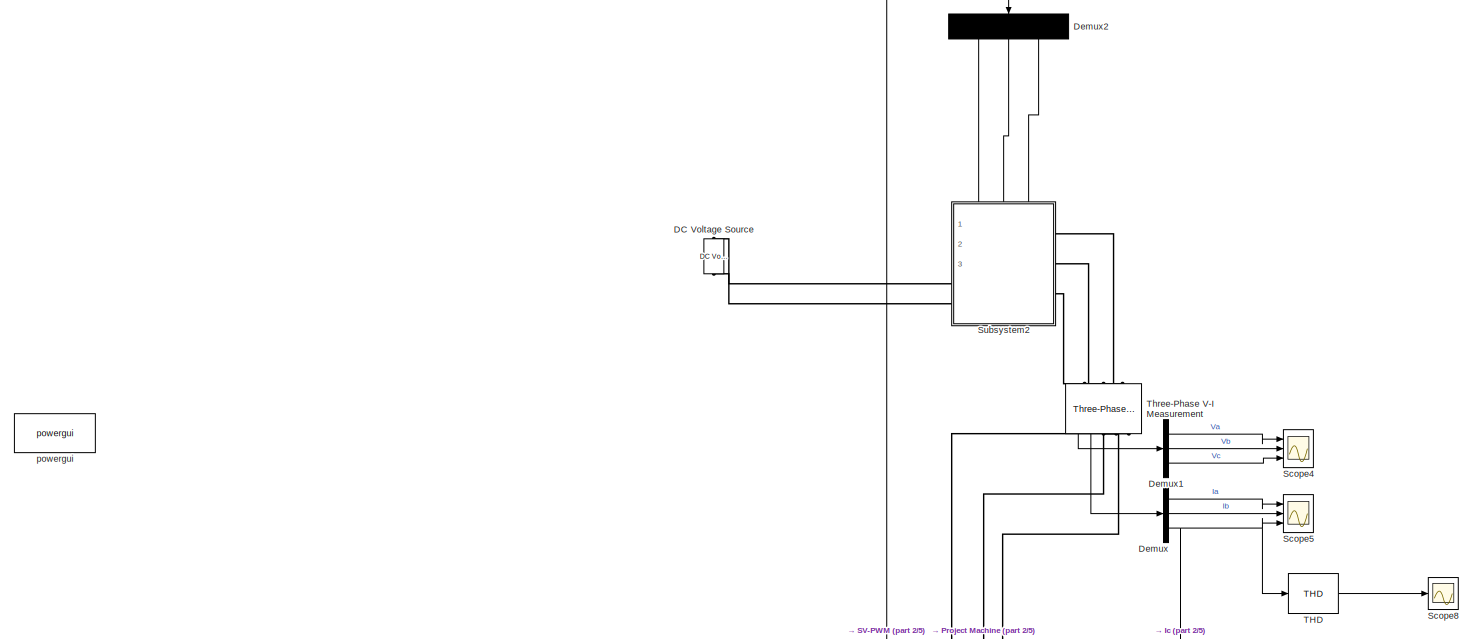
[diagram: root canvas - part 1/5, top center region]
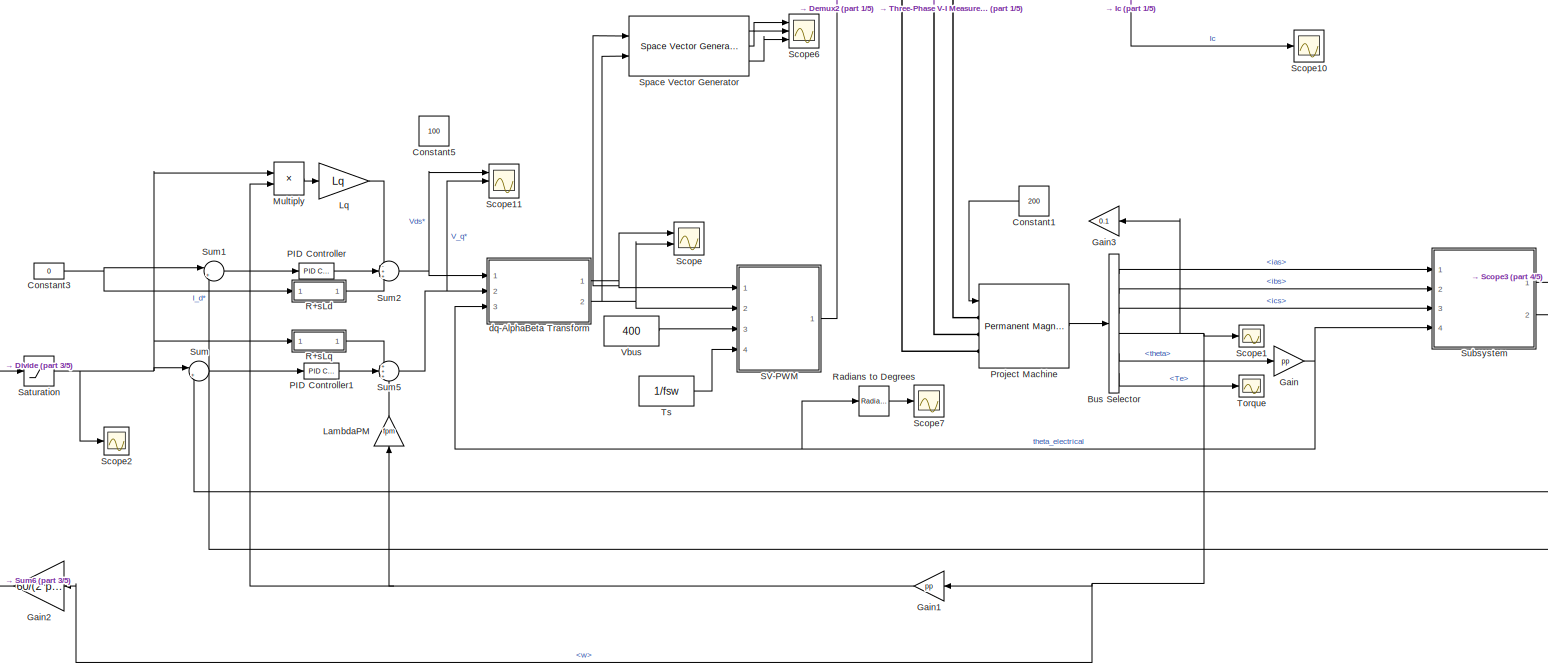
[diagram: root canvas - part 2/5, full width, middle band]
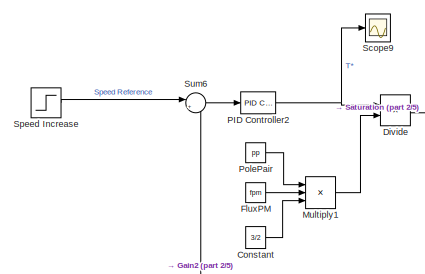
[diagram: root canvas - part 3/5, middle left region]
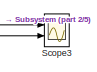
[diagram: root canvas - part 4/5, middle right region]
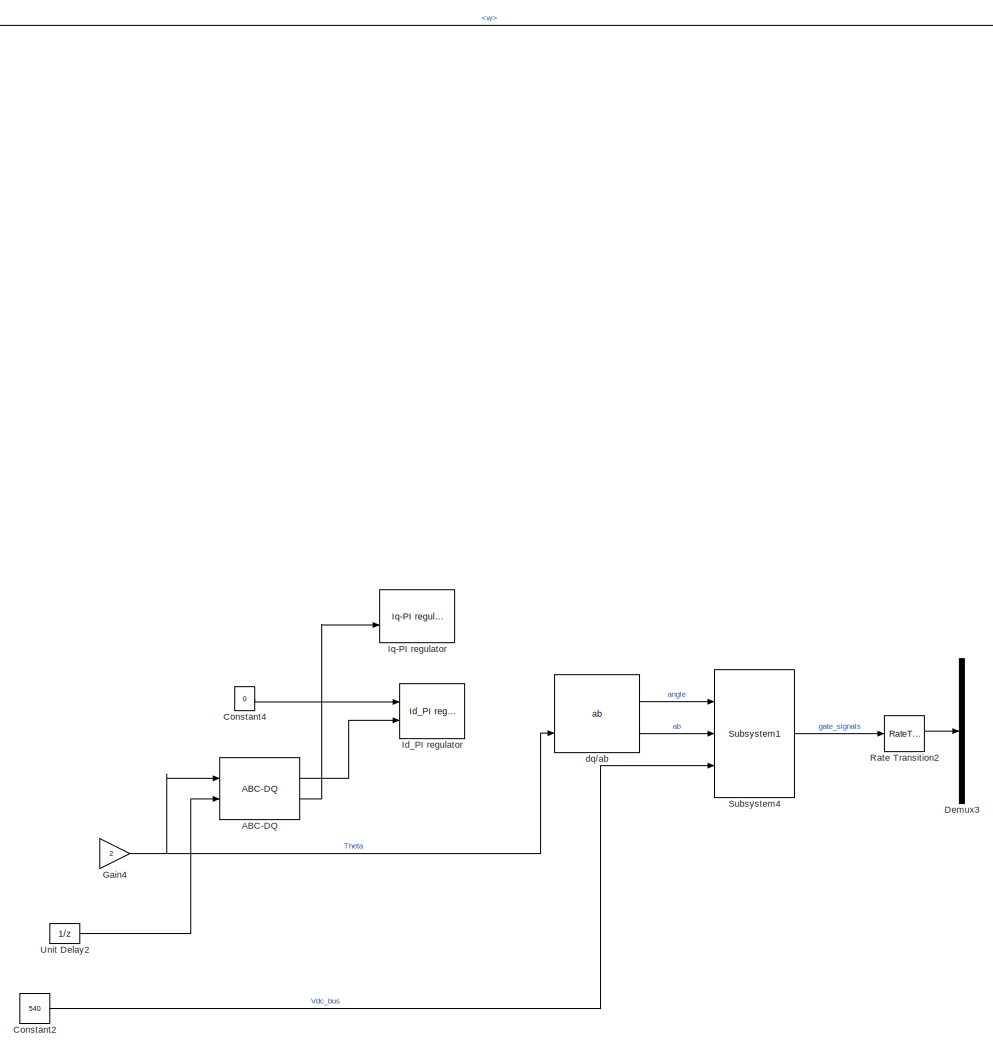
[diagram: root canvas - part 5/5, bottom center region]
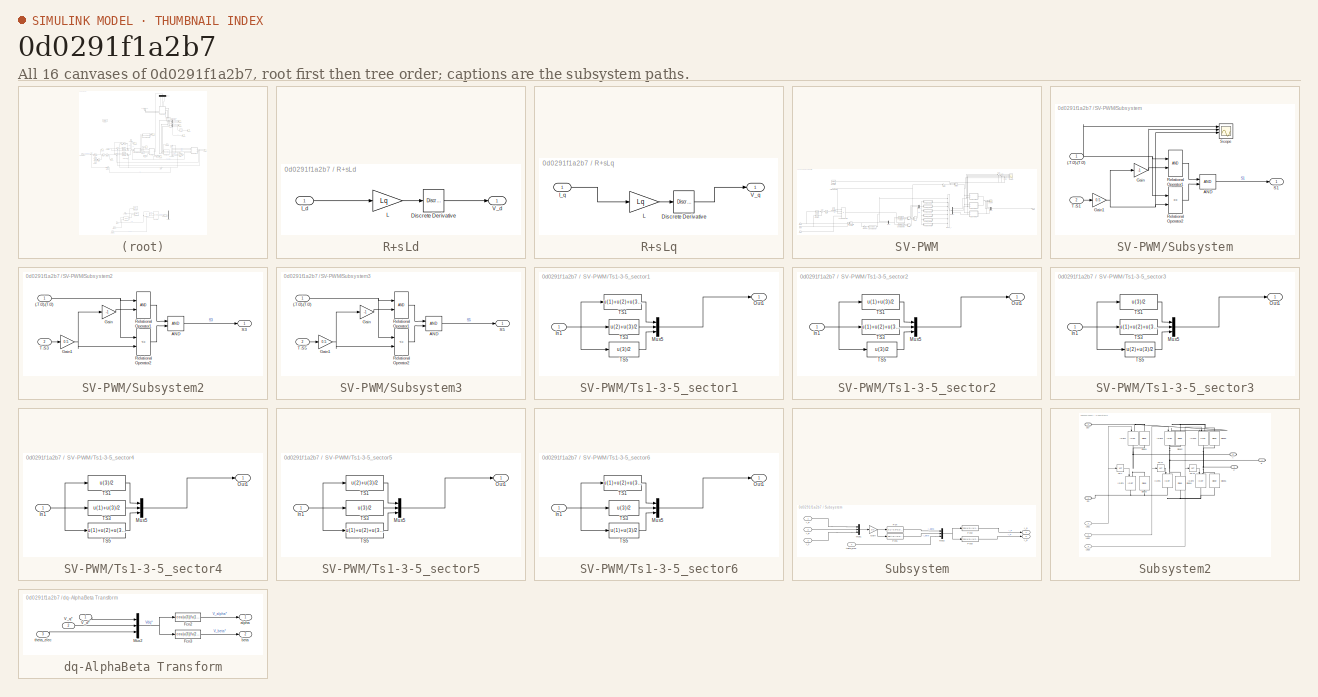
[diagram: thumbnail index - all 16 canvases of the model, root first then tree order]
MODEL slx_0d0291f1a2b7
KIND model
CONFIG AbsTol = auto
CONFIG EnableMultiTasking = off
CONFIG FixedStep = auto
CONFIG MaxStep = 5e-6
CONFIG MinStep = auto
CONFIG RelTol = 1e-3
CONFIG SampleTimeConstraint = Unconstrained
CONFIG SolverName = VariableStepAuto
CONFIG StartTime = 0.0
CONFIG StopTime = 1
BLOCK [Reference] ABC-DQ  REF=electricdrivelib/Fundamental Drive Blocks/Vector Controller
(PMSM)/Detailed
3 phase
SVM/ABC-DQ
  Commented = on
  NameLocation = top
  Ports = [2, 2]
  SourceBlock = electricdrivelib/Fundamental Drive Blocks/Vector Controller\n(PMSM)/Detailed\n3 phase\nSVM/ABC-DQ
  SourceProductBaseCode = PS
  SourceType = SubSystem
BLOCK [BusSelector] Bus Selector
  OutputSignals = ias,ibs,ics,w,theta,Te
  Ports = [1, 6]
BLOCK [Constant] Constant
  Value = 3/2
BLOCK [Constant] Constant1
  NameLocation = top
  Value = 200
BLOCK [Constant] Constant2
  Commented = on
  Value = 540
BLOCK [Constant] Constant3
  Value = 0
BLOCK [Constant] Constant4
  Commented = on
  Value = 0
BLOCK [Constant] Constant5
  Value = 100
BLOCK [Reference] DC Voltage Source  REF=spsDCVoltageSourceLib/DC Voltage Source
  Ports = [0, 0, 0, 0, 0, 1, 1]
  SourceBlock = spsDCVoltageSourceLib/DC Voltage Source
  SourceProductBaseCode = PS
  SourceType = DC Voltage Source
BLOCK [Demux] Demux
  Outputs = 3
  Ports = [1, 3]
BLOCK [Demux] Demux1
  Outputs = 3
  Ports = [1, 3]
BLOCK [Demux] Demux2
  NameLocation = left
  Outputs = 3
  Ports = [1, 3]
BLOCK [Demux] Demux3
  Commented = on
  Outputs = 6
  Ports = [1, 6]
BLOCK [Product] Divide
  Inputs = */
  Ports = [2, 1]
BLOCK [Constant] FluxPM
  Value = fpm
BLOCK [Gain] Gain
  Gain = pp
BLOCK [Gain] Gain1
  Gain = pp
  NameLocation = top
BLOCK [Gain] Gain2
  Gain = 60/(2*pi)
  NameLocation = top
BLOCK [Gain] Gain3
  Gain = 0.1
  NameLocation = top
BLOCK [Gain] Gain4
  Commented = on
  Gain = 2
  OutDataTypeStr = Inherit: Same as input
  ParamDataTypeStr = Inherit: Same as input
  SaturateOnIntegerOverflow = on
BLOCK [Reference] Id_PI regulator  REF=electricdrivelib/Fundamental Drive Blocks/Vector Controller
(PMSM)/Detailed
3 phase
SVM/Id_PI regulator
  Commented = on
  NameLocation = top
  Ports = [2, 1]
  SourceBlock = electricdrivelib/Fundamental Drive Blocks/Vector Controller\n(PMSM)/Detailed\n3 phase\nSVM/Id_PI regulator
  SourceProductBaseCode = PS
  SourceType = SubSystem
BLOCK [Reference] Iq-PI regulator  REF=electricdrivelib/Fundamental Drive Blocks/Vector Controller
(PMSM)/Detailed
3 phase
SVM/Iq-PI regulator
  Commented = on
  NameLocation = top
  Ports = [2, 1]
  SourceBlock = electricdrivelib/Fundamental Drive Blocks/Vector Controller\n(PMSM)/Detailed\n3 phase\nSVM/Iq-PI regulator
  SourceProductBaseCode = PS
  SourceType = SubSystem
BLOCK [Gain] LambdaPM
  Gain = fpm
  NameLocation = left
BLOCK [Gain] Lq
  Gain = Lq
BLOCK [Product] Multiply
  Ports = [2, 1]
BLOCK [Product] Multiply1
  Inputs = 3
  Ports = [3, 1]
BLOCK [Reference] PID Controller  REF=pid_lib/PID Controller
  Ports = [1, 1]
  SourceBlock = pid_lib/PID Controller
  SourceProductBaseCode = SL
  SourceType = PID 1dof
BLOCK [Reference] PID Controller1  REF=pid_lib/PID Controller
  Ports = [1, 1]
  SourceBlock = pid_lib/PID Controller
  SourceProductBaseCode = SL
  SourceType = PID 1dof
BLOCK [Reference] PID Controller2  REF=pid_lib/PID Controller
  Ports = [1, 1]
  SourceBlock = pid_lib/PID Controller
  SourceProductBaseCode = SL
  SourceType = PID 1dof
BLOCK [Constant] PolePair
  Value = pp
BLOCK [Reference] Project Machine  REF=spsPermanentMagnetSynchronousMachineLib/Permanent Magnet
Synchronous Machine
  Ports = [1, 1, 0, 0, 0, 3]
  SourceBlock = spsPermanentMagnetSynchronousMachineLib/Permanent Magnet\nSynchronous Machine
  SourceProductBaseCode = PS
  SourceType = Permanent Magnet Synchronous Machine
BLOCK [SubSystem] R+sLd
  Ports = [1, 1]
  RequestExecContextInheritance = off
BLOCK [Reference] R+sLd/Discrete Derivative  REF=simulink/Discrete/Discrete Derivative
  Ports = [1, 1]
  SourceBlock = simulink/Discrete/Discrete Derivative
  SourceProductBaseCode = SL
  SourceType = Discrete Derivative
BLOCK [Inport] R+sLd/I_d
BLOCK [Gain] R+sLd/L
  Gain = Lq
BLOCK [Outport] R+sLd/V_d
  VectorParamsAs1DForOutWhenUnconnected = off
BLOCK [SubSystem] R+sLq
  NameLocation = top
  Ports = [1, 1]
  RequestExecContextInheritance = off
BLOCK [Reference] R+sLq/Discrete Derivative  REF=simulink/Discrete/Discrete Derivative
  Ports = [1, 1]
  SourceBlock = simulink/Discrete/Discrete Derivative
  SourceProductBaseCode = SL
  SourceType = Discrete Derivative
BLOCK [Inport] R+sLq/I_q
BLOCK [Gain] R+sLq/L
  Gain = Lq
BLOCK [Outport] R+sLq/V_q
  VectorParamsAs1DForOutWhenUnconnected = off
BLOCK [Reference] Radians to Degrees  REF=simulink_extras/Transformations/Radians
to Degrees
  Ports = [1, 1]
  SourceBlock = simulink_extras/Transformations/Radians\nto Degrees
  SourceProductBaseCode = SL
  SourceType = RadiansToDegrees
BLOCK [RateTransition] Rate Transition2
  Commented = on
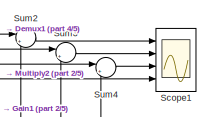
[diagram: SV-PWM - part 1/5, top right region]
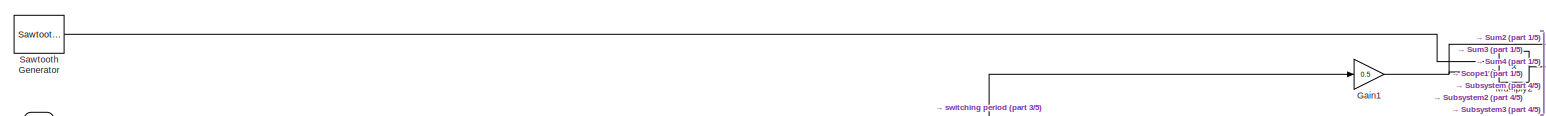
[diagram: SV-PWM - part 2/5, top center region]
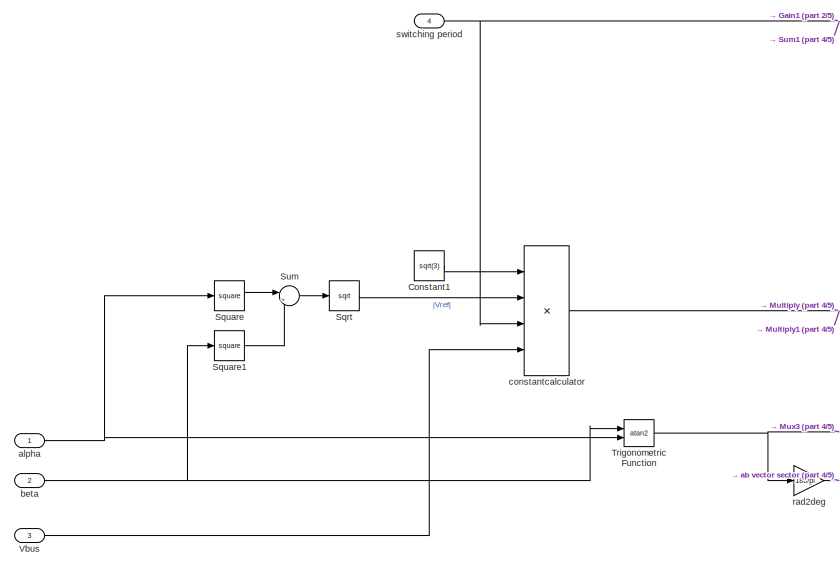
[diagram: SV-PWM - part 3/5, middle left region]
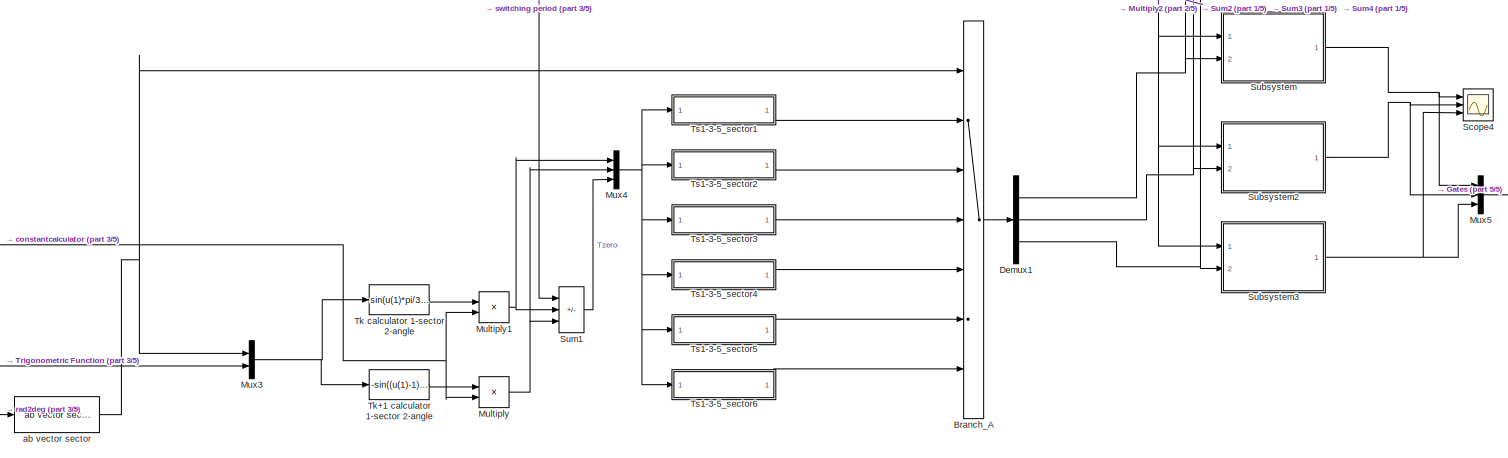
[diagram: SV-PWM - part 4/5, central region]
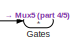
[diagram: SV-PWM - part 5/5, middle right region]
BLOCK [SubSystem] SV-PWM
  Ports = [4, 1]
  RequestExecContextInheritance = off
BLOCK [MultiPortSwitch] SV-PWM/Branch_A
  Inputs = 6
  Ports = [7, 1]
BLOCK [Constant] SV-PWM/Constant1
  Value = sqrt(3)
BLOCK [Demux] SV-PWM/Demux1
  Outputs = 3
  Ports = [1, 3]
BLOCK [Gain] SV-PWM/Gain1
  Gain = 0.5
BLOCK [Outport] SV-PWM/Gates
  VectorParamsAs1DForOutWhenUnconnected = off
BLOCK [Product] SV-PWM/Multiply
  Ports = [2, 1]
BLOCK [Product] SV-PWM/Multiply1
  Ports = [2, 1]
BLOCK [Product] SV-PWM/Multiply2
  Ports = [2, 1]
BLOCK [Mux] SV-PWM/Mux3
  DisplayOption = bar
  Inputs = 2
  Ports = [2, 1]
BLOCK [Mux] SV-PWM/Mux4
  DisplayOption = bar
  Inputs = 3
  Ports = [3, 1]
BLOCK [Mux] SV-PWM/Mux5
  DisplayOption = bar
  Inputs = 3
  Ports = [3, 1]
BLOCK [Reference] SV-PWM/Sawtooth Generator  REF=spsSawtoothGeneratorLib/Sawtooth
Generator
  Ports = [0, 1]
  SourceBlock = spsSawtoothGeneratorLib/Sawtooth\nGenerator
  SourceProductBaseCode = PS
  SourceType = Sawtooth Generator
BLOCK [Scope] SV-PWM/Scope1
  Floating = off
  NumInputPorts = 4
  Ports = [4]
  ScopeSpecificationString = Simulink.scopes.TimeScopeBlockCfg('CurrentConfiguration', extmgr.ConfigurationSet(extmgr.Configuration('Core','General UI',true,'FigureColor',[1 1 1]),extmgr.Configuration('Core','Source UI',true),extmgr.Configuration('Sources','WiredSimulink',true,'DataLoggingVariableName','ScopeData1'),extmgr.Configuration('Visuals','Time Domain',true,'SerializedDisplays',{struct('MinYLimReal','-0.0001','MaxYLim...<+1958ch>
BLOCK [Scope] SV-PWM/Scope4
  Floating = off
  NumInputPorts = 3
  Ports = [3]
  ScopeSpecificationString = Simulink.scopes.TimeScopeBlockCfg('CurrentConfiguration', extmgr.ConfigurationSet(extmgr.Configuration('Core','General UI',true),extmgr.Configuration('Core','Source UI',true),extmgr.Configuration('Sources','WiredSimulink',true,'DataLoggingVariableName','ScopeData2'),extmgr.Configuration('Visuals','Time Domain',true,'SerializedDisplays',{struct('MinYLimReal','-0.125','MaxYLimReal','1.125','YLabelRe...<+2780ch>
BLOCK [Sqrt] SV-PWM/Sqrt
BLOCK [Math] SV-PWM/Square
  Operator = square
  Ports = [1, 1]
  SignedPower = on
BLOCK [Math] SV-PWM/Square1
  Operator = square
  Ports = [1, 1]
  SignedPower = on
BLOCK [SubSystem] SV-PWM/Subsystem
  Ports = [2, 1]
  RequestExecContextInheritance = off
BLOCK [Inport] SV-PWM/Subsystem/(-T//2)-(T//2)
BLOCK [Logic] SV-PWM/Subsystem/AND
  AllPortsSameDT = off
  IconShape = distinctive
  OutDataTypeStr = boolean
  Ports = [2, 1]
BLOCK [Gain] SV-PWM/Subsystem/Gain
  Gain = -1
BLOCK [Gain] SV-PWM/Subsystem/Gain1
  Gain = 0.5
BLOCK [RelationalOperator] SV-PWM/Subsystem/Relational Operator1
  InputSameDT = off
  OutDataTypeStr = boolean
  Ports = [2, 1]
  RndMeth = Simplest
BLOCK [RelationalOperator] SV-PWM/Subsystem/Relational Operator2
  InputSameDT = off
  Operator = <=
  OutDataTypeStr = boolean
  Ports = [2, 1]
  RndMeth = Simplest
BLOCK [Outport] SV-PWM/Subsystem/S1
  VectorParamsAs1DForOutWhenUnconnected = off
BLOCK [Scope] SV-PWM/Subsystem/Scope
  Floating = off
  NumInputPorts = 4
  Ports = [4]
  ScopeSpecificationString = Simulink.scopes.TimeScopeBlockCfg('CurrentConfiguration', extmgr.ConfigurationSet(extmgr.Configuration('Core','General UI',true),extmgr.Configuration('Core','Source UI',true),extmgr.Configuration('Sources','WiredSimulink',true,'DataLoggingVariableName','ScopeData2'),extmgr.Configuration('Visuals','Time Domain',true,'SerializedDisplays',{struct('MinYLimReal','-0.00002','MaxYLimReal','0.0002','YLabe...<+1467ch>
BLOCK [Inport] SV-PWM/Subsystem/T-S1
  Port = 2
BLOCK [SubSystem] SV-PWM/Subsystem2
  Ports = [2, 1]
  RequestExecContextInheritance = off
BLOCK [Inport] SV-PWM/Subsystem2/(-T//2)-(T//2)
BLOCK [Logic] SV-PWM/Subsystem2/AND
  AllPortsSameDT = off
  IconShape = distinctive
  OutDataTypeStr = boolean
  Ports = [2, 1]
BLOCK [Gain] SV-PWM/Subsystem2/Gain
  Gain = -1
BLOCK [Gain] SV-PWM/Subsystem2/Gain1
  Gain = 0.5
BLOCK [RelationalOperator] SV-PWM/Subsystem2/Relational Operator1
  InputSameDT = off
  OutDataTypeStr = boolean
  Ports = [2, 1]
  RndMeth = Simplest
BLOCK [RelationalOperator] SV-PWM/Subsystem2/Relational Operator2
  InputSameDT = off
  Operator = <=
  OutDataTypeStr = boolean
  Ports = [2, 1]
  RndMeth = Simplest
BLOCK [Outport] SV-PWM/Subsystem2/S3
  VectorParamsAs1DForOutWhenUnconnected = off
BLOCK [Inport] SV-PWM/Subsystem2/T-S3
  Port = 2
BLOCK [SubSystem] SV-PWM/Subsystem3
  Ports = [2, 1]
  RequestExecContextInheritance = off
BLOCK [Inport] SV-PWM/Subsystem3/(-T//2)-(T//2)
BLOCK [Logic] SV-PWM/Subsystem3/AND
  AllPortsSameDT = off
  IconShape = distinctive
  OutDataTypeStr = boolean
  Ports = [2, 1]
BLOCK [Gain] SV-PWM/Subsystem3/Gain
  Gain = -1
BLOCK [Gain] SV-PWM/Subsystem3/Gain1
  Gain = 0.5
BLOCK [RelationalOperator] SV-PWM/Subsystem3/Relational Operator1
  InputSameDT = off
  OutDataTypeStr = boolean
  Ports = [2, 1]
  RndMeth = Simplest
BLOCK [RelationalOperator] SV-PWM/Subsystem3/Relational Operator2
  InputSameDT = off
  Operator = <=
  OutDataTypeStr = boolean
  Ports = [2, 1]
  RndMeth = Simplest
BLOCK [Outport] SV-PWM/Subsystem3/S5
  VectorParamsAs1DForOutWhenUnconnected = off
BLOCK [Inport] SV-PWM/Subsystem3/T-S5
  Port = 2
BLOCK [Sum] SV-PWM/Sum
  Inputs = |++
  Ports = [2, 1]
BLOCK [Sum] SV-PWM/Sum1
  IconShape = rectangular
  Inputs = +--
  Ports = [3, 1]
BLOCK [Sum] SV-PWM/Sum2
  Inputs = |+-
  Ports = [2, 1]
BLOCK [Sum] SV-PWM/Sum3
  Inputs = |+-
  Ports = [2, 1]
BLOCK [Sum] SV-PWM/Sum4
  Inputs = |+-
  Ports = [2, 1]
BLOCK [Fcn] SV-PWM/Tk calculator 1-sector 2-angle
  Expr = sin(u(1)*pi/3)*cos(u(2))-cos(u(1)*pi/3)*sin(u(2))
BLOCK [Fcn] SV-PWM/Tk+1 calculator 1-sector 2-angle
  Expr = -sin((u(1)-1)*pi/3)*cos(u(2))+cos((u(1)-1)*pi/3)*sin(u(2))
BLOCK [Trigonometry] SV-PWM/Trigonometric Function
  Operator = atan2
  Ports = [2, 1]
BLOCK [SubSystem] SV-PWM/Ts1-3-5_sector1
  Ports = [1, 1]
  RequestExecContextInheritance = off
BLOCK [Inport] SV-PWM/Ts1-3-5_sector1/In1
BLOCK [Mux] SV-PWM/Ts1-3-5_sector1/Mux5
  DisplayOption = bar
  Inputs = 3
  Ports = [3, 1]
BLOCK [Outport] SV-PWM/Ts1-3-5_sector1/Out1
  VectorParamsAs1DForOutWhenUnconnected = off
BLOCK [Fcn] SV-PWM/Ts1-3-5_sector1/TS1
  Expr = u(1)+u(2)+u(3)/2
BLOCK [Fcn] SV-PWM/Ts1-3-5_sector1/TS3
  Expr = u(2)+u(3)/2
BLOCK [Fcn] SV-PWM/Ts1-3-5_sector1/TS5
  Expr = u(3)/2
BLOCK [SubSystem] SV-PWM/Ts1-3-5_sector2
  Ports = [1, 1]
  RequestExecContextInheritance = off
BLOCK [Inport] SV-PWM/Ts1-3-5_sector2/In1
BLOCK [Mux] SV-PWM/Ts1-3-5_sector2/Mux5
  DisplayOption = bar
  Inputs = 3
  Ports = [3, 1]
BLOCK [Outport] SV-PWM/Ts1-3-5_sector2/Out1
  VectorParamsAs1DForOutWhenUnconnected = off
BLOCK [Fcn] SV-PWM/Ts1-3-5_sector2/TS1
  Expr = u(1)+u(3)/2
BLOCK [Fcn] SV-PWM/Ts1-3-5_sector2/TS3
  Expr = u(1)+u(2)+u(3)/2
BLOCK [Fcn] SV-PWM/Ts1-3-5_sector2/TS5
  Expr = u(3)/2
BLOCK [SubSystem] SV-PWM/Ts1-3-5_sector3
  Ports = [1, 1]
  RequestExecContextInheritance = off
BLOCK [Inport] SV-PWM/Ts1-3-5_sector3/In1
BLOCK [Mux] SV-PWM/Ts1-3-5_sector3/Mux5
  DisplayOption = bar
  Inputs = 3
  Ports = [3, 1]
BLOCK [Outport] SV-PWM/Ts1-3-5_sector3/Out1
  VectorParamsAs1DForOutWhenUnconnected = off
BLOCK [Fcn] SV-PWM/Ts1-3-5_sector3/TS1
  Expr = u(3)/2
BLOCK [Fcn] SV-PWM/Ts1-3-5_sector3/TS3
  Expr = u(1)+u(2)+u(3)/2
BLOCK [Fcn] SV-PWM/Ts1-3-5_sector3/TS5
  Expr = u(2)+u(3)/2
BLOCK [SubSystem] SV-PWM/Ts1-3-5_sector4
  Ports = [1, 1]
  RequestExecContextInheritance = off
BLOCK [Inport] SV-PWM/Ts1-3-5_sector4/In1
BLOCK [Mux] SV-PWM/Ts1-3-5_sector4/Mux5
  DisplayOption = bar
  Inputs = 3
  Ports = [3, 1]
BLOCK [Outport] SV-PWM/Ts1-3-5_sector4/Out1
  VectorParamsAs1DForOutWhenUnconnected = off
BLOCK [Fcn] SV-PWM/Ts1-3-5_sector4/TS1
  Expr = u(3)/2
BLOCK [Fcn] SV-PWM/Ts1-3-5_sector4/TS3
  Expr = u(1)+u(3)/2
BLOCK [Fcn] SV-PWM/Ts1-3-5_sector4/TS5
  Expr = u(1)+u(2)+u(3)/2
BLOCK [SubSystem] SV-PWM/Ts1-3-5_sector5
  Ports = [1, 1]
  RequestExecContextInheritance = off
BLOCK [Inport] SV-PWM/Ts1-3-5_sector5/In1
BLOCK [Mux] SV-PWM/Ts1-3-5_sector5/Mux5
  DisplayOption = bar
  Inputs = 3
  Ports = [3, 1]
BLOCK [Outport] SV-PWM/Ts1-3-5_sector5/Out1
  VectorParamsAs1DForOutWhenUnconnected = off
BLOCK [Fcn] SV-PWM/Ts1-3-5_sector5/TS1
  Expr = u(2)+u(3)/2
BLOCK [Fcn] SV-PWM/Ts1-3-5_sector5/TS3
  Expr = u(3)/2
BLOCK [Fcn] SV-PWM/Ts1-3-5_sector5/TS5
  Expr = u(1)+u(2)+u(3)/2
BLOCK [SubSystem] SV-PWM/Ts1-3-5_sector6
  Ports = [1, 1]
  RequestExecContextInheritance = off
BLOCK [Inport] SV-PWM/Ts1-3-5_sector6/In1
BLOCK [Mux] SV-PWM/Ts1-3-5_sector6/Mux5
  DisplayOption = bar
  Inputs = 3
  Ports = [3, 1]
BLOCK [Outport] SV-PWM/Ts1-3-5_sector6/Out1
  VectorParamsAs1DForOutWhenUnconnected = off
BLOCK [Fcn] SV-PWM/Ts1-3-5_sector6/TS1
  Expr = u(1)+u(2)+u(3)/2
BLOCK [Fcn] SV-PWM/Ts1-3-5_sector6/TS3
  Expr = u(3)/2
BLOCK [Fcn] SV-PWM/Ts1-3-5_sector6/TS5
  Expr = u(1)+u(3)/2
BLOCK [Inport] SV-PWM/Vbus
  Port = 3
BLOCK [Reference] SV-PWM/ab vector sector  REF=spsSpaceVectorModulatorLib/Space Vector Modulator/Detailed/ab vector sector
  Ports = [1, 1]
  SourceBlock = spsSpaceVectorModulatorLib/Space Vector Modulator/Detailed/ab vector sector
  SourceProductBaseCode = PS
  SourceType = SubSystem
BLOCK [Inport] SV-PWM/alpha
BLOCK [Inport] SV-PWM/beta
  Port = 2
BLOCK [Product] SV-PWM/constantcalculator
  Inputs = ***/
  Ports = [4, 1]
BLOCK [Gain] SV-PWM/rad2deg
  Gain = 180/pi
  OutDataTypeStr = Inherit: Same as input
  ParamDataTypeStr = Inherit: Same as input
  SaturateOnIntegerOverflow = on
BLOCK [Inport] SV-PWM/switching period
  Port = 4
BLOCK [Saturate] Saturation
  LowerLimit = -iqmax
  UpperLimit = iqmax
BLOCK [Scope] Scope
  Floating = off
  NumInputPorts = 2
  Ports = [2]
  ScopeSpecificationString = Simulink.scopes.TimeScopeBlockCfg('CurrentConfiguration', extmgr.ConfigurationSet(extmgr.Configuration('Core','General UI',true),extmgr.Configuration('Core','Source UI',true),extmgr.Configuration('Sources','WiredSimulink',true,'DataLoggingVariableName','ScopeData1'),extmgr.Configuration('Visuals','Time Domain',true,'SerializedDisplays',{struct('MinYLimReal','-567.39692','MaxYLimReal','383.9875','Y...<+1506ch>
BLOCK [Scope] Scope1
  Floating = off
  NumInputPorts = 1
  Ports = [1]
  ScopeSpecificationString = Simulink.scopes.TimeScopeBlockCfg('CurrentConfiguration', extmgr.ConfigurationSet(extmgr.Configuration('Core','General UI',true,'FigureColor',[1 1 1]),extmgr.Configuration('Core','Source UI',true),extmgr.Configuration('Sources','WiredSimulink',true),extmgr.Configuration('Visuals','Time Domain',true,'SerializedDisplays',{struct('MinYLimReal','596.45905','MaxYLimReal','631.84911','YLabelReal','','Mi...<+1530ch>
BLOCK [Scope] Scope10
  Floating = off
  NumInputPorts = 1
  Ports = [1]
  ScopeSpecificationString = Simulink.scopes.TimeScopeBlockCfg('CurrentConfiguration', extmgr.ConfigurationSet(extmgr.Configuration('Core','General UI',true),extmgr.Configuration('Core','Source UI',true),extmgr.Configuration('Sources','WiredSimulink',true,'DataLoggingVariableName','ic_sv','DataLogging',true),extmgr.Configuration('Visuals','Time Domain',true,'SerializedDisplays',{struct('MinYLimReal','-1869.16554','MaxYLimReal...<+1451ch>
BLOCK [Scope] Scope11
  Floating = off
  NumInputPorts = 3
  Ports = [3]
  ScopeSpecificationString = Simulink.scopes.TimeScopeBlockCfg('CurrentConfiguration', extmgr.ConfigurationSet(extmgr.Configuration('Core','General UI',true),extmgr.Configuration('Core','Source UI',true),extmgr.Configuration('Sources','WiredSimulink',true,'DataLoggingVariableName','ScopeData2'),extmgr.Configuration('Visuals','Time Domain',true,'SerializedDisplays',{struct('MinYLimReal','-302.69281','MaxYLimReal','1364.52142',...<+1444ch>
BLOCK [Scope] Scope2
  Floating = off
  NumInputPorts = 1
  Ports = [1]
  ScopeSpecificationString = Simulink.scopes.TimeScopeBlockCfg('CurrentConfiguration', extmgr.ConfigurationSet(extmgr.Configuration('Core','General UI',true,'FigureColor',[1 1 1]),extmgr.Configuration('Core','Source UI',true),extmgr.Configuration('Sources','WiredSimulink',true,'DataLoggingVariableName','ScopeData1'),extmgr.Configuration('Visuals','Time Domain',true,'SerializedDisplays',{struct('MinYLimReal','1132.90398','MaxY...<+1592ch>
BLOCK [Scope] Scope3
  Floating = off
  NumInputPorts = 2
  Ports = [2]
  ScopeSpecificationString = Simulink.scopes.TimeScopeBlockCfg('CurrentConfiguration', extmgr.ConfigurationSet(extmgr.Configuration('Core','General UI',true,'FigureColor',[1 1 1]),extmgr.Configuration('Core','Source UI',true),extmgr.Configuration('Sources','WiredSimulink',true,'DataLoggingVariableName','ScopeData5'),extmgr.Configuration('Visuals','Time Domain',true,'SerializedDisplays',{struct('MinYLimReal','-372.57114','MaxY...<+1733ch>
BLOCK [Scope] Scope4
  Floating = off
  NumInputPorts = 3
  Ports = [3]
  ScopeSpecificationString = Simulink.scopes.TimeScopeBlockCfg('CurrentConfiguration', extmgr.ConfigurationSet(extmgr.Configuration('Core','General UI',true,'FigureColor',[1 1 1]),extmgr.Configuration('Core','Source UI',true),extmgr.Configuration('Sources','WiredSimulink',true,'DataLoggingVariableName','ScopeData3'),extmgr.Configuration('Visuals','Time Domain',true,'SerializedDisplays',{struct('MinYLimReal','-735.45005','MaxY...<+3282ch>
BLOCK [Scope] Scope5
  Floating = off
  NumInputPorts = 3
  Ports = [3]
  ScopeSpecificationString = Simulink.scopes.TimeScopeBlockCfg('CurrentConfiguration', extmgr.ConfigurationSet(extmgr.Configuration('Core','General UI',true,'FigureColor',[1 1 1]),extmgr.Configuration('Core','Source UI',true),extmgr.Configuration('Sources','WiredSimulink',true,'DataLoggingVariableName','ScopeData4'),extmgr.Configuration('Visuals','Time Domain',true,'SerializedDisplays',{struct('MinYLimReal','-1156.52675','Max...<+3286ch>
BLOCK [Scope] Scope6
  Floating = off
  NumInputPorts = 3
  Ports = [3]
  ScopeSpecificationString = Simulink.scopes.TimeScopeBlockCfg('CurrentConfiguration', extmgr.ConfigurationSet(extmgr.Configuration('Core','General UI',true),extmgr.Configuration('Core','Source UI',true),extmgr.Configuration('Sources','WiredSimulink',true,'DataLoggingVariableName','ScopeData1'),extmgr.Configuration('Visuals','Time Domain',true,'SerializedDisplays',{struct('MinYLimReal','-199.82458','MaxYLimReal','124.02078','...<+1528ch>
BLOCK [Scope] Scope7
  Floating = off
  NumInputPorts = 1
  Ports = [1]
  ScopeSpecificationString = Simulink.scopes.TimeScopeBlockCfg('CurrentConfiguration', extmgr.ConfigurationSet(extmgr.Configuration('Core','General UI',true),extmgr.Configuration('Core','Source UI',true),extmgr.Configuration('Sources','WiredSimulink',true,'DataLoggingVariableName','ScopeData2'),extmgr.Configuration('Visuals','Time Domain',true,'SerializedDisplays',{struct('MinYLimReal','-507.31229','MaxYLimReal','4565.81065',...<+1420ch>
BLOCK [Scope] Scope8
  Floating = off
  NumInputPorts = 1
  Ports = [1]
  ScopeSpecificationString = Simulink.scopes.TimeScopeBlockCfg('CurrentConfiguration', extmgr.ConfigurationSet(extmgr.Configuration('Core','General UI',true),extmgr.Configuration('Core','Source UI',true),extmgr.Configuration('Sources','WiredSimulink',true,'DataLoggingVariableName','ScopeData1'),extmgr.Configuration('Visuals','Time Domain',true,'SerializedDisplays',{struct('MinYLimReal','0.00125','MaxYLimReal','0.01171','YLabe...<+1433ch>
BLOCK [Scope] Scope9
  Floating = off
  NumInputPorts = 1
  Ports = [1]
  ScopeSpecificationString = Simulink.scopes.TimeScopeBlockCfg('CurrentConfiguration', extmgr.ConfigurationSet(extmgr.Configuration('Core','General UI',true,'FigureColor',[1 1 1]),extmgr.Configuration('Core','Source UI',true),extmgr.Configuration('Sources','WiredSimulink',true,'DataLoggingVariableName','ScopeData2'),extmgr.Configuration('Visuals','Time Domain',true,'SerializedDisplays',{struct('MinYLimReal','5427259.76337','M...<+1608ch>
BLOCK [Reference] Space Vector Generator  REF=mcbcontrolslib/Space Vector Generator
  Ports = [2, 3]
  SourceBlock = mcbcontrolslib/Space Vector Generator
  SourceProductBaseCode = MT
  SourceType = Space Vector Generator
BLOCK [Step] Speed Increase
  After = 6000
  Before = 6000
  SampleTime = 0
  Time = 0.5
BLOCK [SubSystem] Subsystem
  Ports = [4, 2]
  RequestExecContextInheritance = off
BLOCK [Fcn] Subsystem/Fcn
  Expr = u(1)-0.5*u(2)-0.5*u(3)
BLOCK [Fcn] Subsystem/Fcn1
  Expr = sqrt(3)*(u(2)-u(3))/2
BLOCK [Fcn] Subsystem/Fcn2
  Expr = cos(u(3))*u(1)+sin(u(3))*u(2)
BLOCK [Fcn] Subsystem/Fcn3
  Expr = cos(u(3))*u(2)-sin(u(3))*u(1)
BLOCK [Gain] Subsystem/Gain
  Gain = 2/3
BLOCK [Inport] Subsystem/I_a
BLOCK [Inport] Subsystem/I_b
  Port = 2
BLOCK [Inport] Subsystem/I_c
  Port = 3
BLOCK [Outport] Subsystem/I_d
  VectorParamsAs1DForOutWhenUnconnected = off
BLOCK [Outport] Subsystem/I_q
  Port = 2
  VectorParamsAs1DForOutWhenUnconnected = off
BLOCK [Mux] Subsystem/Mux1
  DisplayOption = bar
  Inputs = 3
  Ports = [3, 1]
BLOCK [Mux] Subsystem/Mux2
  DisplayOption = bar
  Inputs = 3
  Ports = [3, 1]
BLOCK [Inport] Subsystem/theta_elec
  Port = 4
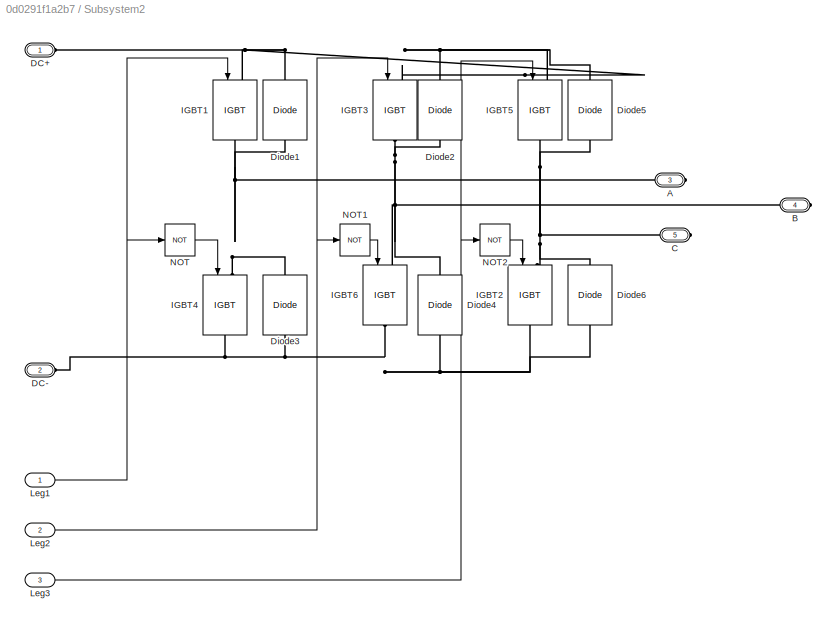
BLOCK [SubSystem] Subsystem2
  PortSchema = {"entries":[{"content":{"sides":[{"content":{"connectorIds":["LConn1","LConn2"]},"type":"ConnectorPlacement.EquallySpacedRectSide","uuid":"88d7e8af-40ab-4bee-bce0-34dcfd3f569e"},{"content":{"connectorIds":["RConn1","RConn2","RConn3"],"side":"RIGHT"},"type":"ConnectorPlacement.EquallySpacedRectSide","uuid":"521f4639-389b-4d4b-889c-c4a922300d9a"},{"content":{"connectorIds":["In1","In2","In3"],"side"...<+289ch>
  Ports = [3, 0, 0, 0, 0, 2, 3]
  RequestExecContextInheritance = off
BLOCK [PMIOPort] Subsystem2/A
  Port = 3
  Side = Right
BLOCK [PMIOPort] Subsystem2/B
  Port = 4
  Side = Right
BLOCK [PMIOPort] Subsystem2/C
  Port = 5
  Side = Right
BLOCK [PMIOPort] Subsystem2/DC+
  Side = Left
BLOCK [PMIOPort] Subsystem2/DC-
  Port = 2
  Side = Left
BLOCK [Reference] Subsystem2/Diode1  REF=spsDiodeLib/Diode
  NameLocation = right
  Ports = [0, 0, 0, 0, 0, 1, 1]
  SourceBlock = spsDiodeLib/Diode
  SourceProductBaseCode = PS
  SourceType = Diode
BLOCK [Reference] Subsystem2/Diode2  REF=spsDiodeLib/Diode
  NameLocation = right
  Ports = [0, 0, 0, 0, 0, 1, 1]
  SourceBlock = spsDiodeLib/Diode
  SourceProductBaseCode = PS
  SourceType = Diode
BLOCK [Reference] Subsystem2/Diode3  REF=spsDiodeLib/Diode
  NameLocation = right
  Ports = [0, 0, 0, 0, 0, 1, 1]
  SourceBlock = spsDiodeLib/Diode
  SourceProductBaseCode = PS
  SourceType = Diode
BLOCK [Reference] Subsystem2/Diode4  REF=spsDiodeLib/Diode
  NameLocation = right
  Ports = [0, 0, 0, 0, 0, 1, 1]
  SourceBlock = spsDiodeLib/Diode
  SourceProductBaseCode = PS
  SourceType = Diode
BLOCK [Reference] Subsystem2/Diode5  REF=spsDiodeLib/Diode
  NameLocation = right
  Ports = [0, 0, 0, 0, 0, 1, 1]
  SourceBlock = spsDiodeLib/Diode
  SourceProductBaseCode = PS
  SourceType = Diode
BLOCK [Reference] Subsystem2/Diode6  REF=spsDiodeLib/Diode
  NameLocation = right
  Ports = [0, 0, 0, 0, 0, 1, 1]
  SourceBlock = spsDiodeLib/Diode
  SourceProductBaseCode = PS
  SourceType = Diode
BLOCK [Reference] Subsystem2/IGBT1  REF=spsIGBTLib/IGBT
  NameLocation = left
  Ports = [1, 0, 0, 0, 0, 1, 1]
  SourceBlock = spsIGBTLib/IGBT
  SourceProductBaseCode = PS
  SourceType = IGBT
BLOCK [Reference] Subsystem2/IGBT2  REF=spsIGBTLib/IGBT
  NameLocation = left
  Ports = [1, 0, 0, 0, 0, 1, 1]
  SourceBlock = spsIGBTLib/IGBT
  SourceProductBaseCode = PS
  SourceType = IGBT
BLOCK [Reference] Subsystem2/IGBT3  REF=spsIGBTLib/IGBT
  NameLocation = left
  Ports = [1, 0, 0, 0, 0, 1, 1]
  SourceBlock = spsIGBTLib/IGBT
  SourceProductBaseCode = PS
  SourceType = IGBT
BLOCK [Reference] Subsystem2/IGBT4  REF=spsIGBTLib/IGBT
  NameLocation = left
  Ports = [1, 0, 0, 0, 0, 1, 1]
  SourceBlock = spsIGBTLib/IGBT
  SourceProductBaseCode = PS
  SourceType = IGBT
BLOCK [Reference] Subsystem2/IGBT5  REF=spsIGBTLib/IGBT
  NameLocation = left
  Ports = [1, 0, 0, 0, 0, 1, 1]
  SourceBlock = spsIGBTLib/IGBT
  SourceProductBaseCode = PS
  SourceType = IGBT
BLOCK [Reference] Subsystem2/IGBT6  REF=spsIGBTLib/IGBT
  NameLocation = left
  Ports = [1, 0, 0, 0, 0, 1, 1]
  SourceBlock = spsIGBTLib/IGBT
  SourceProductBaseCode = PS
  SourceType = IGBT
BLOCK [Inport] Subsystem2/Leg1
BLOCK [Inport] Subsystem2/Leg2
  Port = 2
BLOCK [Inport] Subsystem2/Leg3
  Port = 3
BLOCK [Logic] Subsystem2/NOT
  AllPortsSameDT = off
  IconShape = distinctive
  Operator = NOT
  OutDataTypeStr = boolean
  Ports = [1, 1]
BLOCK [Logic] Subsystem2/NOT1
  AllPortsSameDT = off
  IconShape = distinctive
  Operator = NOT
  OutDataTypeStr = boolean
  Ports = [1, 1]
BLOCK [Logic] Subsystem2/NOT2
  AllPortsSameDT = off
  IconShape = distinctive
  Operator = NOT
  OutDataTypeStr = boolean
  Ports = [1, 1]
BLOCK [Reference] Subsystem4  REF=electricdrivelib/Fundamental Drive Blocks/Vector Controller
(PMSM)/Detailed
3 phase
SVM/Subsystem1
  Commented = on
  Ports = [3, 1]
  SourceBlock = electricdrivelib/Fundamental Drive Blocks/Vector Controller\n(PMSM)/Detailed\n3 phase\nSVM/Subsystem1
  SourceProductBaseCode = PS
BLOCK [Sum] Sum
  Inputs = |+-
  Ports = [2, 1]
BLOCK [Sum] Sum1
  Inputs = |+-
  Ports = [2, 1]
BLOCK [Sum] Sum2
  Inputs = -++
  Ports = [3, 1]
BLOCK [Sum] Sum5
  Inputs = +++
  Ports = [3, 1]
BLOCK [Sum] Sum6
  Inputs = |+-
  Ports = [2, 1]
BLOCK [Reference] THD  REF=spsTHDLib/THD
  Ports = [1, 1]
  SourceBlock = spsTHDLib/THD
  SourceProductBaseCode = PS
  SourceType = THD
BLOCK [Reference] Three-Phase V-I Measurement  REF=spsThreePhaseVIMeasurementLib/Three-Phase
V-I Measurement
  NameLocation = left
  Ports = [0, 2, 0, 0, 0, 3, 3]
  SourceBlock = spsThreePhaseVIMeasurementLib/Three-Phase\nV-I Measurement
  SourceProductBaseCode = PS
  SourceType = Three-Phase VI Measurement
BLOCK [Scope] Torque
  Floating = off
  NumInputPorts = 1
  Ports = [1]
  ScopeSpecificationString = Simulink.scopes.TimeScopeBlockCfg('CurrentConfiguration', extmgr.ConfigurationSet(extmgr.Configuration('Core','General UI',true,'FigureColor',[1 1 1]),extmgr.Configuration('Core','Source UI',true),extmgr.Configuration('Sources','WiredSimulink',true,'DataLoggingVariableName','ScopeData2'),extmgr.Configuration('Visuals','Time Domain',true,'SerializedDisplays',{struct('MinYLimReal','-333.2817','MaxYL...<+1580ch>
BLOCK [Constant] Ts
  Value = 1/fsw
BLOCK [UnitDelay] Unit Delay2
  Commented = on
  HasFrameUpgradeWarning = on
  SampleTime = -1
BLOCK [Constant] Vbus
  Value = 400
BLOCK [SubSystem] dq-AlphaBeta Transform
  Ports = [3, 2]
  RequestExecContextInheritance = off
BLOCK [Fcn] dq-AlphaBeta Transform/Fcn2
  Expr = cos(u(3))*u(1)-sin(u(3))*u(2)
BLOCK [Fcn] dq-AlphaBeta Transform/Fcn3
  Expr = cos(u(3))*u(2)+sin(u(3))*u(1)
BLOCK [Mux] dq-AlphaBeta Transform/Mux2
  DisplayOption = bar
  Inputs = 3
  Ports = [3, 1]
BLOCK [Inport] dq-AlphaBeta Transform/V_d*
BLOCK [Inport] dq-AlphaBeta Transform/V_q*
  Port = 2
BLOCK [Outport] dq-AlphaBeta Transform/alpha 
  VectorParamsAs1DForOutWhenUnconnected = off
BLOCK [Outport] dq-AlphaBeta Transform/beta
  Port = 2
  VectorParamsAs1DForOutWhenUnconnected = off
BLOCK [Inport] dq-AlphaBeta Transform/theta_elec
  Port = 3
BLOCK [Reference] dq//ab  REF=electricdrivelib/Fundamental Drive Blocks/Vector Controller
(PMSM)/Detailed
3 phase
SVM/dq//ab
  Commented = on
  Ports = [3, 2]
  SourceBlock = electricdrivelib/Fundamental Drive Blocks/Vector Controller\n(PMSM)/Detailed\n3 phase\nSVM/dq//ab
  SourceProductBaseCode = PS
BLOCK [Reference] powergui  REF=spspowerguiLib/powergui
  Ports = []
  Priority = 1
  SourceBlock = spspowerguiLib/powergui
  SourceProductBaseCode = PS
  SourceType = PSB option menu block
LINE ABC-DQ:1 -> Id_PI regulator:2
LINE ABC-DQ:2 -> Iq-PI regulator:2
LINE Bus Selector:1 -> Subsystem:1
LINE Bus Selector:2 -> Subsystem:2
LINE Bus Selector:3 -> Subsystem:3
NET Bus Selector:4 -> Gain1:1, Gain2:1, Gain3:1, Scope1:1
LINE Bus Selector:5 -> Gain:1
LINE Bus Selector:6 -> Torque:1
LINE Constant1:1 -> Project Machine:1
LINE Constant2:1 -> Subsystem4:3
NET Constant3:1 -> R+sLd:1, Sum1:1
LINE Constant4:1 -> Id_PI regulator:1
LINE Constant:1 -> Multiply1:3
LINE Demux1:1 -> Scope4:1
LINE Demux1:2 -> Scope4:2
LINE Demux1:3 -> Scope4:3
LINE Demux2:1 -> Subsystem2:1
LINE Demux2:2 -> Subsystem2:2
LINE Demux2:3 -> Subsystem2:3
LINE Demux:1 -> Scope5:1
LINE Demux:2 -> Scope5:2
NET Demux:3 -> Scope10:1, Scope5:3, THD:1
LINE Divide:1 -> Saturation:1
LINE FluxPM:1 -> Multiply1:2
NET Gain1:1 -> LambdaPM:1, Multiply:2
LINE Gain2:1 -> Sum6:2
NET Gain4:1 -> ABC-DQ:1, dq//ab:3
NET Gain:1 -> Radians to Degrees:1, Subsystem:4, dq-AlphaBeta Transform:3
LINE LambdaPM:1 -> Sum5:3
LINE Lq:1 -> Sum2:1
LINE Multiply1:1 -> Divide:2
LINE Multiply:1 -> Lq:1
LINE PID Controller1:1 -> Sum5:2
NET PID Controller2:1 -> Divide:1, Scope9:1
LINE PID Controller:1 -> Sum2:2
LINE PolePair:1 -> Multiply1:1
LINE Project Machine:1 -> Bus Selector:1
LINE R+sLd/Discrete Derivative:1 -> R+sLd/V_d:1
LINE R+sLd/I_d:1 -> R+sLd/L:1
LINE R+sLd/L:1 -> R+sLd/Discrete Derivative:1
LINE R+sLd:1 -> Sum2:3
LINE R+sLq/Discrete Derivative:1 -> R+sLq/V_q:1
LINE R+sLq/I_q:1 -> R+sLq/L:1
LINE R+sLq/L:1 -> R+sLq/Discrete Derivative:1
LINE R+sLq:1 -> Sum5:1
LINE Radians to Degrees:1 -> Scope7:1
LINE Rate Transition2:1 -> Demux3:1
LINE SV-PWM/Branch_A:1 -> SV-PWM/Demux1:1
LINE SV-PWM/Constant1:1 -> SV-PWM/constantcalculator:1
NET SV-PWM/Demux1:1 -> SV-PWM/Subsystem:2, SV-PWM/Sum2:1
NET SV-PWM/Demux1:2 -> SV-PWM/Subsystem2:2, SV-PWM/Sum3:1
NET SV-PWM/Demux1:3 -> SV-PWM/Subsystem3:2, SV-PWM/Sum4:1
NET SV-PWM/Gain1:1 -> SV-PWM/Multiply2:2, SV-PWM/Sum2:2, SV-PWM/Sum3:2, SV-PWM/Sum4:2
NET SV-PWM/Multiply1:1 -> SV-PWM/Mux4:1, SV-PWM/Sum1:2
NET SV-PWM/Multiply2:1 -> SV-PWM/Scope1:4, SV-PWM/Subsystem2:1, SV-PWM/Subsystem3:1, SV-PWM/Subsystem:1
NET SV-PWM/Multiply:1 -> SV-PWM/Mux4:2, SV-PWM/Sum1:3
NET SV-PWM/Mux3:1 -> SV-PWM/Tk calculator 1-sector 2-angle:1, SV-PWM/Tk+1 calculator 1-sector 2-angle:1
NET SV-PWM/Mux4:1 -> SV-PWM/Ts1-3-5_sector1:1, SV-PWM/Ts1-3-5_sector2:1, SV-PWM/Ts1-3-5_sector3:1, SV-PWM/Ts1-3-5_sector4:1, SV-PWM/Ts1-3-5_sector5:1, SV-PWM/Ts1-3-5_sector6:1
LINE SV-PWM/Mux5:1 -> SV-PWM/Gates:1
LINE SV-PWM/Sawtooth Generator:1 -> SV-PWM/Multiply2:1
LINE SV-PWM/Sqrt:1 -> SV-PWM/constantcalculator:2
LINE SV-PWM/Square1:1 -> SV-PWM/Sum:2
LINE SV-PWM/Square:1 -> SV-PWM/Sum:1
NET SV-PWM/Subsystem/(-T//2)-(T//2):1 -> SV-PWM/Subsystem/Relational Operator1:1, SV-PWM/Subsystem/Relational Operator2:1, SV-PWM/Subsystem/Scope:1
LINE SV-PWM/Subsystem/AND:1 -> SV-PWM/Subsystem/S1:1
NET SV-PWM/Subsystem/Gain1:1 -> SV-PWM/Subsystem/Gain:1, SV-PWM/Subsystem/Relational Operator2:2, SV-PWM/Subsystem/Scope:3
NET SV-PWM/Subsystem/Gain:1 -> SV-PWM/Subsystem/Relational Operator1:2, SV-PWM/Subsystem/Scope:2
LINE SV-PWM/Subsystem/Relational Operator1:1 -> SV-PWM/Subsystem/AND:1
LINE SV-PWM/Subsystem/Relational Operator2:1 -> SV-PWM/Subsystem/AND:2
LINE SV-PWM/Subsystem/T-S1:1 -> SV-PWM/Subsystem/Gain1:1
NET SV-PWM/Subsystem2/(-T//2)-(T//2):1 -> SV-PWM/Subsystem2/Relational Operator1:1, SV-PWM/Subsystem2/Relational Operator2:1
LINE SV-PWM/Subsystem2/AND:1 -> SV-PWM/Subsystem2/S3:1
NET SV-PWM/Subsystem2/Gain1:1 -> SV-PWM/Subsystem2/Gain:1, SV-PWM/Subsystem2/Relational Operator2:2
LINE SV-PWM/Subsystem2/Gain:1 -> SV-PWM/Subsystem2/Relational Operator1:2
LINE SV-PWM/Subsystem2/Relational Operator1:1 -> SV-PWM/Subsystem2/AND:1
LINE SV-PWM/Subsystem2/Relational Operator2:1 -> SV-PWM/Subsystem2/AND:2
LINE SV-PWM/Subsystem2/T-S3:1 -> SV-PWM/Subsystem2/Gain1:1
NET SV-PWM/Subsystem2:1 -> SV-PWM/Mux5:2, SV-PWM/Scope4:2
NET SV-PWM/Subsystem3/(-T//2)-(T//2):1 -> SV-PWM/Subsystem3/Relational Operator1:1, SV-PWM/Subsystem3/Relational Operator2:1
LINE SV-PWM/Subsystem3/AND:1 -> SV-PWM/Subsystem3/S5:1
NET SV-PWM/Subsystem3/Gain1:1 -> SV-PWM/Subsystem3/Gain:1, SV-PWM/Subsystem3/Relational Operator2:2
LINE SV-PWM/Subsystem3/Gain:1 -> SV-PWM/Subsystem3/Relational Operator1:2
LINE SV-PWM/Subsystem3/Relational Operator1:1 -> SV-PWM/Subsystem3/AND:1
LINE SV-PWM/Subsystem3/Relational Operator2:1 -> SV-PWM/Subsystem3/AND:2
LINE SV-PWM/Subsystem3/T-S5:1 -> SV-PWM/Subsystem3/Gain1:1
NET SV-PWM/Subsystem3:1 -> SV-PWM/Mux5:3, SV-PWM/Scope4:3
NET SV-PWM/Subsystem:1 -> SV-PWM/Mux5:1, SV-PWM/Scope4:1
LINE SV-PWM/Sum1:1 -> SV-PWM/Mux4:3
LINE SV-PWM/Sum2:1 -> SV-PWM/Scope1:1
LINE SV-PWM/Sum3:1 -> SV-PWM/Scope1:2
LINE SV-PWM/Sum4:1 -> SV-PWM/Scope1:3
LINE SV-PWM/Sum:1 -> SV-PWM/Sqrt:1
LINE SV-PWM/Tk calculator 1-sector 2-angle:1 -> SV-PWM/Multiply1:1
LINE SV-PWM/Tk+1 calculator 1-sector 2-angle:1 -> SV-PWM/Multiply:1
NET SV-PWM/Trigonometric Function:1 -> SV-PWM/Mux3:2, SV-PWM/rad2deg:1
NET SV-PWM/Ts1-3-5_sector1/In1:1 -> SV-PWM/Ts1-3-5_sector1/TS1:1, SV-PWM/Ts1-3-5_sector1/TS3:1, SV-PWM/Ts1-3-5_sector1/TS5:1
LINE SV-PWM/Ts1-3-5_sector1/Mux5:1 -> SV-PWM/Ts1-3-5_sector1/Out1:1
LINE SV-PWM/Ts1-3-5_sector1/TS1:1 -> SV-PWM/Ts1-3-5_sector1/Mux5:1
LINE SV-PWM/Ts1-3-5_sector1/TS3:1 -> SV-PWM/Ts1-3-5_sector1/Mux5:2
LINE SV-PWM/Ts1-3-5_sector1/TS5:1 -> SV-PWM/Ts1-3-5_sector1/Mux5:3
LINE SV-PWM/Ts1-3-5_sector1:1 -> SV-PWM/Branch_A:2
NET SV-PWM/Ts1-3-5_sector2/In1:1 -> SV-PWM/Ts1-3-5_sector2/TS1:1, SV-PWM/Ts1-3-5_sector2/TS3:1, SV-PWM/Ts1-3-5_sector2/TS5:1
LINE SV-PWM/Ts1-3-5_sector2/Mux5:1 -> SV-PWM/Ts1-3-5_sector2/Out1:1
LINE SV-PWM/Ts1-3-5_sector2/TS1:1 -> SV-PWM/Ts1-3-5_sector2/Mux5:1
LINE SV-PWM/Ts1-3-5_sector2/TS3:1 -> SV-PWM/Ts1-3-5_sector2/Mux5:2
LINE SV-PWM/Ts1-3-5_sector2/TS5:1 -> SV-PWM/Ts1-3-5_sector2/Mux5:3
LINE SV-PWM/Ts1-3-5_sector2:1 -> SV-PWM/Branch_A:3
NET SV-PWM/Ts1-3-5_sector3/In1:1 -> SV-PWM/Ts1-3-5_sector3/TS1:1, SV-PWM/Ts1-3-5_sector3/TS3:1, SV-PWM/Ts1-3-5_sector3/TS5:1
LINE SV-PWM/Ts1-3-5_sector3/Mux5:1 -> SV-PWM/Ts1-3-5_sector3/Out1:1
LINE SV-PWM/Ts1-3-5_sector3/TS1:1 -> SV-PWM/Ts1-3-5_sector3/Mux5:1
LINE SV-PWM/Ts1-3-5_sector3/TS3:1 -> SV-PWM/Ts1-3-5_sector3/Mux5:2
LINE SV-PWM/Ts1-3-5_sector3/TS5:1 -> SV-PWM/Ts1-3-5_sector3/Mux5:3
LINE SV-PWM/Ts1-3-5_sector3:1 -> SV-PWM/Branch_A:4
NET SV-PWM/Ts1-3-5_sector4/In1:1 -> SV-PWM/Ts1-3-5_sector4/TS1:1, SV-PWM/Ts1-3-5_sector4/TS3:1, SV-PWM/Ts1-3-5_sector4/TS5:1
LINE SV-PWM/Ts1-3-5_sector4/Mux5:1 -> SV-PWM/Ts1-3-5_sector4/Out1:1
LINE SV-PWM/Ts1-3-5_sector4/TS1:1 -> SV-PWM/Ts1-3-5_sector4/Mux5:1
LINE SV-PWM/Ts1-3-5_sector4/TS3:1 -> SV-PWM/Ts1-3-5_sector4/Mux5:2
LINE SV-PWM/Ts1-3-5_sector4/TS5:1 -> SV-PWM/Ts1-3-5_sector4/Mux5:3
LINE SV-PWM/Ts1-3-5_sector4:1 -> SV-PWM/Branch_A:5
NET SV-PWM/Ts1-3-5_sector5/In1:1 -> SV-PWM/Ts1-3-5_sector5/TS1:1, SV-PWM/Ts1-3-5_sector5/TS3:1, SV-PWM/Ts1-3-5_sector5/TS5:1
LINE SV-PWM/Ts1-3-5_sector5/Mux5:1 -> SV-PWM/Ts1-3-5_sector5/Out1:1
LINE SV-PWM/Ts1-3-5_sector5/TS1:1 -> SV-PWM/Ts1-3-5_sector5/Mux5:1
LINE SV-PWM/Ts1-3-5_sector5/TS3:1 -> SV-PWM/Ts1-3-5_sector5/Mux5:2
LINE SV-PWM/Ts1-3-5_sector5/TS5:1 -> SV-PWM/Ts1-3-5_sector5/Mux5:3
LINE SV-PWM/Ts1-3-5_sector5:1 -> SV-PWM/Branch_A:6
NET SV-PWM/Ts1-3-5_sector6/In1:1 -> SV-PWM/Ts1-3-5_sector6/TS1:1, SV-PWM/Ts1-3-5_sector6/TS3:1, SV-PWM/Ts1-3-5_sector6/TS5:1
LINE SV-PWM/Ts1-3-5_sector6/Mux5:1 -> SV-PWM/Ts1-3-5_sector6/Out1:1
LINE SV-PWM/Ts1-3-5_sector6/TS1:1 -> SV-PWM/Ts1-3-5_sector6/Mux5:1
LINE SV-PWM/Ts1-3-5_sector6/TS3:1 -> SV-PWM/Ts1-3-5_sector6/Mux5:2
LINE SV-PWM/Ts1-3-5_sector6/TS5:1 -> SV-PWM/Ts1-3-5_sector6/Mux5:3
LINE SV-PWM/Ts1-3-5_sector6:1 -> SV-PWM/Branch_A:7
LINE SV-PWM/Vbus:1 -> SV-PWM/constantcalculator:4
NET SV-PWM/ab vector sector:1 -> SV-PWM/Branch_A:1, SV-PWM/Mux3:1
NET SV-PWM/alpha:1 -> SV-PWM/Square:1, SV-PWM/Trigonometric Function:2
NET SV-PWM/beta:1 -> SV-PWM/Square1:1, SV-PWM/Trigonometric Function:1
NET SV-PWM/constantcalculator:1 -> SV-PWM/Multiply1:2, SV-PWM/Multiply:2
LINE SV-PWM/rad2deg:1 -> SV-PWM/ab vector sector:1
NET SV-PWM/switching period:1 -> SV-PWM/Gain1:1, SV-PWM/Sum1:1, SV-PWM/constantcalculator:3
LINE SV-PWM:1 -> Demux2:1
NET Saturation:1 -> Multiply:1, R+sLq:1, Scope2:1, Sum:1
LINE Space Vector Generator:1 -> Scope6:1
LINE Space Vector Generator:2 -> Scope6:2
LINE Space Vector Generator:3 -> Scope6:3
LINE Speed Increase:1 -> Sum6:1
LINE Subsystem/Fcn1:1 -> Subsystem/Mux2:2
LINE Subsystem/Fcn2:1 -> Subsystem/I_d:1
LINE Subsystem/Fcn3:1 -> Subsystem/I_q:1
LINE Subsystem/Fcn:1 -> Subsystem/Mux2:1
NET Subsystem/Gain:1 -> Subsystem/Fcn1:1, Subsystem/Fcn:1
LINE Subsystem/I_a:1 -> Subsystem/Mux1:1
LINE Subsystem/I_b:1 -> Subsystem/Mux1:2
LINE Subsystem/I_c:1 -> Subsystem/Mux1:3
LINE Subsystem/Mux1:1 -> Subsystem/Gain:1
NET Subsystem/Mux2:1 -> Subsystem/Fcn2:1, Subsystem/Fcn3:1
LINE Subsystem/theta_elec:1 -> Subsystem/Mux2:3
NET Subsystem2/Leg1:1 -> Subsystem2/IGBT1:1, Subsystem2/NOT:1
NET Subsystem2/Leg2:1 -> Subsystem2/IGBT3:1, Subsystem2/NOT1:1
NET Subsystem2/Leg3:1 -> Subsystem2/IGBT5:1, Subsystem2/NOT2:1
LINE Subsystem2/NOT1:1 -> Subsystem2/IGBT6:1
LINE Subsystem2/NOT2:1 -> Subsystem2/IGBT2:1
LINE Subsystem2/NOT:1 -> Subsystem2/IGBT4:1
LINE Subsystem4:1 -> Rate Transition2:1
NET Subsystem:1 -> Scope3:1, Sum1:2
NET Subsystem:2 -> Scope3:2, Sum:2
LINE Sum1:1 -> PID Controller:1
NET Sum2:1 -> Scope11:1, dq-AlphaBeta Transform:1
NET Sum5:1 -> Scope11:2, dq-AlphaBeta Transform:2
LINE Sum6:1 -> PID Controller2:1
LINE Sum:1 -> PID Controller1:1
LINE THD:1 -> Scope8:1
LINE Three-Phase V-I Measurement:1 -> Demux1:1
LINE Three-Phase V-I Measurement:2 -> Demux:1
LINE Ts:1 -> SV-PWM:4
LINE Unit Delay2:1 -> ABC-DQ:2
LINE Vbus:1 -> SV-PWM:3
LINE dq-AlphaBeta Transform/Fcn2:1 -> dq-AlphaBeta Transform/alpha :1
LINE dq-AlphaBeta Transform/Fcn3:1 -> dq-AlphaBeta Transform/beta:1
NET dq-AlphaBeta Transform/Mux2:1 -> dq-AlphaBeta Transform/Fcn2:1, dq-AlphaBeta Transform/Fcn3:1
LINE dq-AlphaBeta Transform/V_d*:1 -> dq-AlphaBeta Transform/Mux2:1
LINE dq-AlphaBeta Transform/V_q*:1 -> dq-AlphaBeta Transform/Mux2:2
LINE dq-AlphaBeta Transform/theta_elec:1 -> dq-AlphaBeta Transform/Mux2:3
NET dq-AlphaBeta Transform:1 -> SV-PWM:1, Scope:1, Space Vector Generator:1
NET dq-AlphaBeta Transform:2 -> SV-PWM:2, Scope:2, Space Vector Generator:2
LINE dq//ab:1 -> Subsystem4:1
LINE dq//ab:2 -> Subsystem4:2
PLINE DC Voltage Source:LConn1 -- Subsystem2:LConn2
PLINE DC Voltage Source:RConn1 -- Subsystem2:LConn1
PLINE Project Machine:LConn1 -- Three-Phase V-I Measurement:RConn1
PLINE Project Machine:LConn2 -- Three-Phase V-I Measurement:RConn2
PLINE Project Machine:LConn3 -- Three-Phase V-I Measurement:RConn3
PNET net1: Subsystem2/A:RConn1 -- Subsystem2/Diode1:LConn1 -- Subsystem2/Diode3:RConn1 -- Subsystem2/IGBT1:RConn1 -- Subsystem2/IGBT4:LConn1
PNET net2: Subsystem2/B:RConn1 -- Subsystem2/Diode2:LConn1 -- Subsystem2/Diode4:RConn1 -- Subsystem2/IGBT3:RConn1 -- Subsystem2/IGBT6:LConn1
PNET net3: Subsystem2/C:RConn1 -- Subsystem2/Diode5:LConn1 -- Subsystem2/Diode6:RConn1 -- Subsystem2/IGBT2:LConn1 -- Subsystem2/IGBT5:RConn1
PNET net4: Subsystem2/DC+:RConn1 -- Subsystem2/Diode1:RConn1 -- Subsystem2/Diode2:RConn1 -- Subsystem2/Diode5:RConn1 -- Subsystem2/IGBT1:LConn1 -- Subsystem2/IGBT3:LConn1 -- Subsystem2/IGBT5:LConn1
PNET net5: Subsystem2/DC-:RConn1 -- Subsystem2/Diode3:LConn1 -- Subsystem2/Diode4:LConn1 -- Subsystem2/Diode6:LConn1 -- Subsystem2/IGBT2:RConn1 -- Subsystem2/IGBT4:RConn1 -- Subsystem2/IGBT6:RConn1
PLINE Subsystem2:RConn1 -- Three-Phase V-I Measurement:LConn1
PLINE Subsystem2:RConn2 -- Three-Phase V-I Measurement:LConn2
PLINE Subsystem2:RConn3 -- Three-Phase V-I Measurement:LConn3
note: NET lines group one-source signal fan-out (src -> all destinations, sorted); 1:1 wires keep LINE; PNET lines group multi-terminal physical nets as a canonical sorted terminal list (undirected conserving connections); 2-terminal nets keep the pairwise PLINE form
